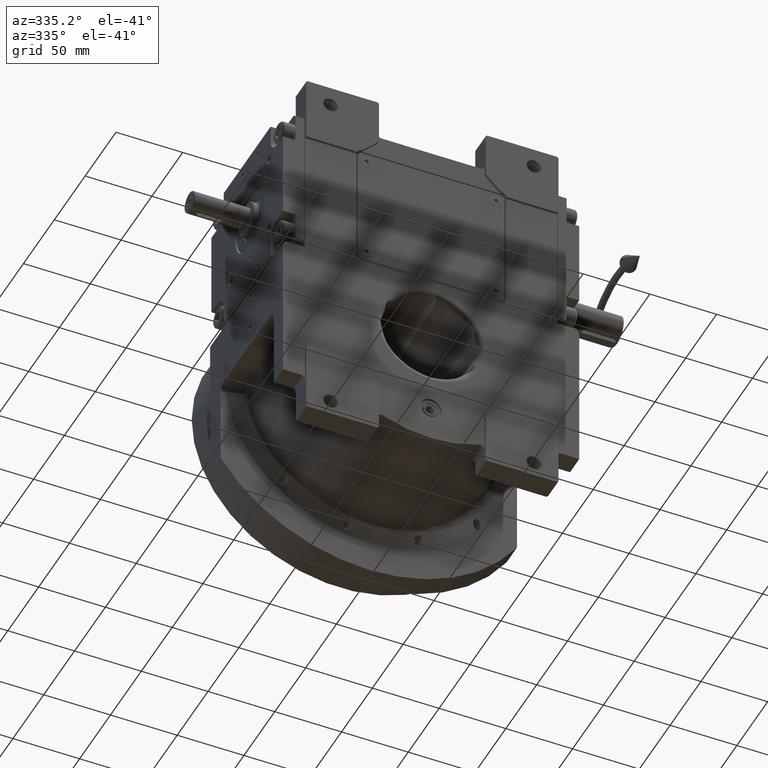
[diagram: clean part render]
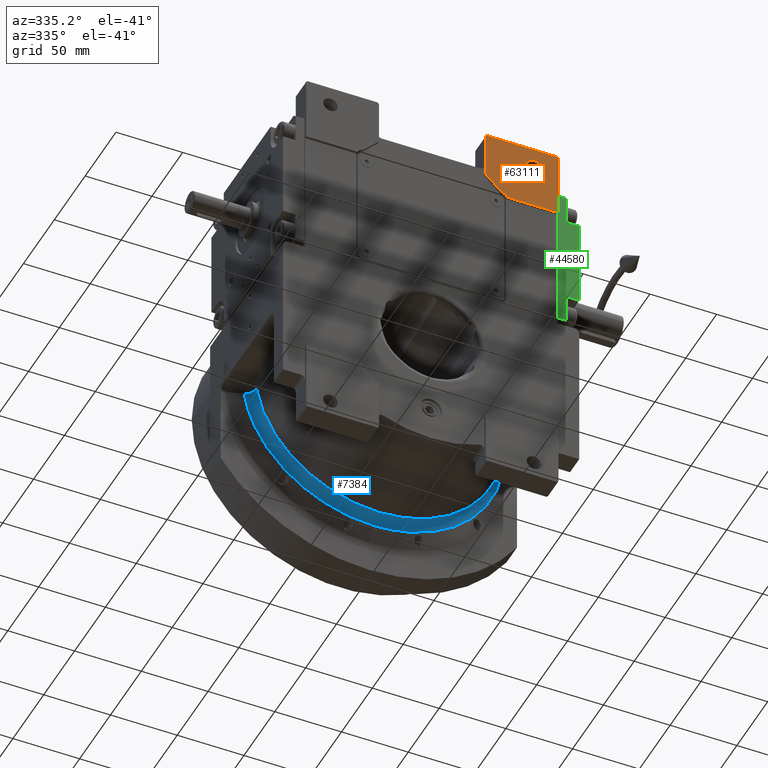
[diagram: same view with three faces highlighted in distinct colors, each labeled with its STEP entity id]
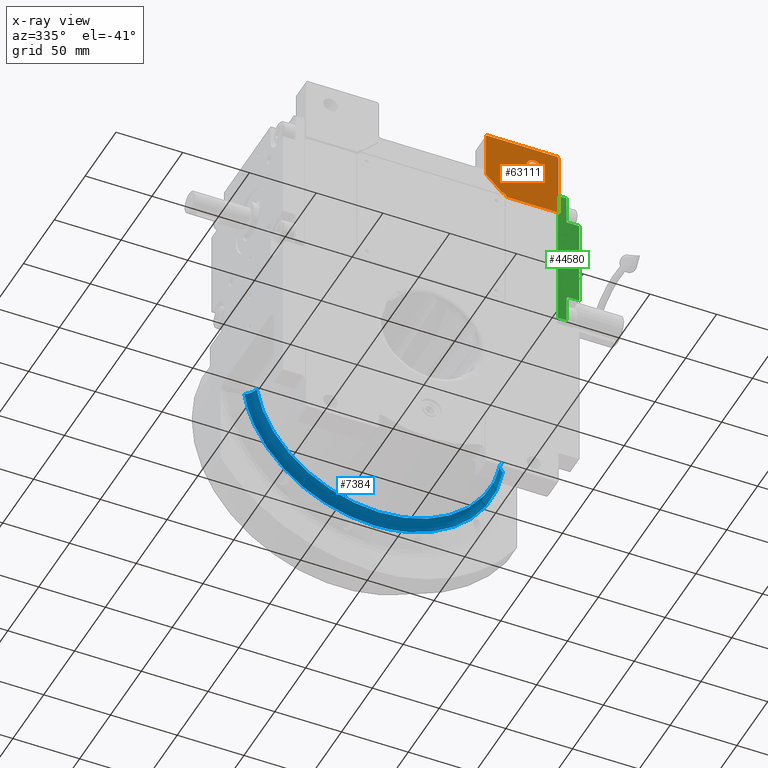
[diagram: x-ray of the same camera — body ghosted, the three highlighted faces saturated]
A machine part, auxiliary view with three faces highlighted in distinct colors.
The next image is the same camera in x-ray (body ghosted, the three faces saturated) — at least one of them is partly hidden behind the body in this view.
Their STEP definitions:

[orange] entity #63111 — the highlighted planar face has unit normal (0, -1, 0).
#401 = VECTOR ( 'NONE', #6009, 1000.000000000000114 ) ;
#783 = DIRECTION ( 'NONE',  ( -1.000000000000000000, 0.000000000000000000, 0.000000000000000000 ) ) ;
#1351 = CIRCLE ( 'NONE', #22281, 5.500000000000005329 ) ;
#2369 = DIRECTION ( 'NONE',  ( 0.000000000000000000, -1.000000000000000000, 0.000000000000000000 ) ) ;
#3494 = CARTESIAN_POINT ( 'NONE',  ( 81.69999999999998863, -55.50000000000000000, 178.0000000000000000 ) ) ;
#4413 = CARTESIAN_POINT ( 'NONE',  ( 39.99999999999929656, -55.50000000000000000, 192.0000000000000000 ) ) ;
#5113 = VERTEX_POINT ( 'NONE', #3494 ) ;
#5681 = LINE ( 'NONE', #37387, #401 ) ;
#6009 = DIRECTION ( 'NONE',  ( 0.7071067811865474617, 0.000000000000000000, -0.7071067811865474617 ) ) ;
#7813 = VECTOR ( 'NONE', #54853, 1000.000000000000114 ) ;
#8864 = VERTEX_POINT ( 'NONE', #52221 ) ;
#10362 = CARTESIAN_POINT ( 'NONE',  ( 94.50000000000000000, -55.50000000000000000, 143.0000000000000000 ) ) ;
#11279 = EDGE_CURVE ( 'NONE', #60317, #44044, #5681, .T. ) ;
#11772 = LINE ( 'NONE', #32811, #16561 ) ;
#11873 = CARTESIAN_POINT ( 'NONE',  ( 52.00000000000000000, -55.50000000000000000, 142.0000000000000000 ) ) ;
#12318 = VERTEX_POINT ( 'NONE', #40612 ) ;
#12353 = EDGE_CURVE ( 'NONE', #8864, #60317, #30590, .T. ) ;
#12842 = CARTESIAN_POINT ( 'NONE',  ( 94.50000000000000000, -55.50000000000000000, 192.0000000000000000 ) ) ;
#15127 = DIRECTION ( 'NONE',  ( -0.7071067811865474617, 0.000000000000000000, -0.7071067811865474617 ) ) ;
#16127 = EDGE_CURVE ( 'NONE', #67216, #31372, #62405, .T. ) ;
#16561 = VECTOR ( 'NONE', #783, 1000.000000000000000 ) ;
#16776 = CARTESIAN_POINT ( 'NONE',  ( 76.20000000000000284, -55.50000000000000000, 178.0000000000000000 ) ) ;
#17524 = FACE_OUTER_BOUND ( 'NONE', #65442, .T. ) ;
#19484 = VECTOR ( 'NONE', #15127, 1000.000000000000114 ) ;
#19981 = ORIENTED_EDGE ( 'NONE', *, *, #26996, .T. ) ;
#20458 = EDGE_CURVE ( 'NONE', #54954, #5113, #1351, .T. ) ;
#22001 = EDGE_CURVE ( 'NONE', #28877, #44044, #44422, .T. ) ;
#22281 = AXIS2_PLACEMENT_3D ( 'NONE', #16776, #63961, #49157 ) ;
#24486 = ORIENTED_EDGE ( 'NONE', *, *, #53652, .T. ) ;
#24490 = CARTESIAN_POINT ( 'NONE',  ( 94.50000000000000000, -55.50000000000000000, 192.0000000000000000 ) ) ;
#26996 = EDGE_CURVE ( 'NONE', #28877, #67216, #36436, .T. ) ;
#27866 = CARTESIAN_POINT ( 'NONE',  ( 0.000000000000000000, -55.50000000000000000, 0.000000000000000000 ) ) ;
#28249 = ORIENTED_EDGE ( 'NONE', *, *, #53171, .T. ) ;
#28877 = VERTEX_POINT ( 'NONE', #53097 ) ;
#30094 = AXIS2_PLACEMENT_3D ( 'NONE', #11873, #48388, #64241 ) ;
#30590 = LINE ( 'NONE', #4413, #62144 ) ;
#31372 = VERTEX_POINT ( 'NONE', #24490 ) ;
#32811 = CARTESIAN_POINT ( 'NONE',  ( 93.50000000000000000, -55.50000000000000000, 193.0000000000000000 ) ) ;
#33379 = DIRECTION ( 'NONE',  ( -1.000000000000000000, 0.000000000000000000, 0.000000000000000000 ) ) ;
#34486 = EDGE_CURVE ( 'NONE', #31372, #45616, #60049, .T. ) ;
#34644 = VECTOR ( 'NONE', #62741, 1000.000000000000000 ) ;
#36436 = LINE ( 'NONE', #53604, #47985 ) ;
#36823 = DIRECTION ( 'NONE',  ( 0.000000000000000000, 0.000000000000000000, -1.000000000000000000 ) ) ;
#37387 = CARTESIAN_POINT ( 'NONE',  ( 39.99999999999929656, -55.50000000000000000, 158.0000000000000000 ) ) ;
#38553 = PLANE ( 'NONE',  #61901 ) ;
#38679 = ORIENTED_EDGE ( 'NONE', *, *, #11279, .T. ) ;
#40612 = CARTESIAN_POINT ( 'NONE',  ( 40.99999999999930367, -55.50000000000000000, 193.0000000000000000 ) ) ;
#42472 = EDGE_CURVE ( 'NONE', #12318, #8864, #62321, .T. ) ;
#43107 = CARTESIAN_POINT ( 'NONE',  ( 51.99999999999930367, -55.50000000000000000, 146.0000000000000000 ) ) ;
#44044 = VERTEX_POINT ( 'NONE', #43107 ) ;
#44422 = CIRCLE ( 'NONE', #30094, 3.999999999999996891 ) ;
#45141 = ORIENTED_EDGE ( 'NONE', *, *, #16127, .T. ) ;
#45562 = EDGE_LOOP ( 'NONE', ( #24486, #51966 ) ) ;
#45616 = VERTEX_POINT ( 'NONE', #60911 ) ;
#46303 = CIRCLE ( 'NONE', #55108, 5.500000000000005329 ) ;
#47985 = VECTOR ( 'NONE', #63604, 1000.000000000000000 ) ;
#48388 = DIRECTION ( 'NONE',  ( 0.000000000000000000, -1.000000000000000000, 0.000000000000000000 ) ) ;
#49157 = DIRECTION ( 'NONE',  ( -1.000000000000000000, 0.000000000000000000, 0.000000000000000000 ) ) ;
#49209 = FACE_BOUND ( 'NONE', #45562, .T. ) ;
#49253 = CARTESIAN_POINT ( 'NONE',  ( 76.20000000000000284, -55.50000000000000000, 178.0000000000000000 ) ) ;
#51524 = CARTESIAN_POINT ( 'NONE',  ( 94.50000000000000000, -55.50000000000000000, 143.0000000000000000 ) ) ;
#51966 = ORIENTED_EDGE ( 'NONE', *, *, #20458, .T. ) ;
#52221 = CARTESIAN_POINT ( 'NONE',  ( 39.99999999999929656, -55.50000000000000000, 192.0000000000000000 ) ) ;
#53097 = CARTESIAN_POINT ( 'NONE',  ( 55.87298334620739837, -55.50000000000000000, 143.0000000000000000 ) ) ;
#53171 = EDGE_CURVE ( 'NONE', #45616, #12318, #11772, .T. ) ;
#53604 = CARTESIAN_POINT ( 'NONE',  ( 55.87298334620739837, -55.50000000000000000, 143.0000000000000000 ) ) ;
#53652 = EDGE_CURVE ( 'NONE', #5113, #54954, #46303, .T. ) ;
#53728 = DIRECTION ( 'NONE',  ( 1.000000000000000000, 0.000000000000000000, 0.000000000000000000 ) ) ;
#53757 = ORIENTED_EDGE ( 'NONE', *, *, #34486, .T. ) ;
#54853 = DIRECTION ( 'NONE',  ( -0.7071067811865474617, 0.000000000000000000, 0.7071067811865474617 ) ) ;
#54954 = VERTEX_POINT ( 'NONE', #67888 ) ;
#55108 = AXIS2_PLACEMENT_3D ( 'NONE', #49253, #64409, #53728 ) ;
#59718 = ORIENTED_EDGE ( 'NONE', *, *, #42472, .T. ) ;
#60049 = LINE ( 'NONE', #12842, #7813 ) ;
#60317 = VERTEX_POINT ( 'NONE', #64616 ) ;
#60911 = CARTESIAN_POINT ( 'NONE',  ( 93.50000000000000000, -55.50000000000000000, 193.0000000000000000 ) ) ;
#61690 = ORIENTED_EDGE ( 'NONE', *, *, #22001, .F. ) ;
#61901 = AXIS2_PLACEMENT_3D ( 'NONE', #27866, #2369, #33379 ) ;
#62144 = VECTOR ( 'NONE', #36823, 1000.000000000000000 ) ;
#62321 = LINE ( 'NONE', #62661, #19484 ) ;
#62405 = LINE ( 'NONE', #10362, #34644 ) ;
#62661 = CARTESIAN_POINT ( 'NONE',  ( 40.99999999999930367, -55.50000000000000000, 193.0000000000000000 ) ) ;
#62741 = DIRECTION ( 'NONE',  ( 0.000000000000000000, 0.000000000000000000, 1.000000000000000000 ) ) ;
#62860 = ORIENTED_EDGE ( 'NONE', *, *, #12353, .T. ) ;
#63111 = ADVANCED_FACE ( 'NONE', ( #49209, #17524 ), #38553, .T. ) ;
#63604 = DIRECTION ( 'NONE',  ( 1.000000000000000000, 0.000000000000000000, 0.000000000000000000 ) ) ;
#63961 = DIRECTION ( 'NONE',  ( 0.000000000000000000, 1.000000000000000000, 0.000000000000000000 ) ) ;
#64241 = DIRECTION ( 'NONE',  ( 0.9682458365518541443, 0.000000000000000000, 0.2500000000000004441 ) ) ;
#64409 = DIRECTION ( 'NONE',  ( 0.000000000000000000, 1.000000000000000000, 0.000000000000000000 ) ) ;
#64616 = CARTESIAN_POINT ( 'NONE',  ( 39.99999999999929656, -55.50000000000000000, 158.0000000000000000 ) ) ;
#65442 = EDGE_LOOP ( 'NONE', ( #62860, #38679, #61690, #19981, #45141, #53757, #28249, #59718 ) ) ;
#67216 = VERTEX_POINT ( 'NONE', #51524 ) ;
#67888 = CARTESIAN_POINT ( 'NONE',  ( 70.70000000000000284, -55.50000000000000000, 178.0000000000000000 ) ) ;

[blue] entity #7384 — the highlighted toroidal blend (fillet) surface has major radius 103 mm and minor (blend) radius 10 mm.
#222 = CARTESIAN_POINT ( 'NONE',  ( -92.20713085096697625, 34.20791438985033039, -15.17274392116164705 ) ) ;
#640 = ORIENTED_EDGE ( 'NONE', *, *, #7616, .T. ) ;
#799 = CARTESIAN_POINT ( 'NONE',  ( 94.42786900662497374, 37.98341469119410618, -15.05959796905412063 ) ) ;
#902 = CARTESIAN_POINT ( 'NONE',  ( -94.74854578481331657, 38.29608898670825567, -15.04224268228467665 ) ) ;
#1135 = CARTESIAN_POINT ( 'NONE',  ( 94.76765896782438858, 38.31472517732135685, -15.04120811764683019 ) ) ;
#1488 = CARTESIAN_POINT ( 'NONE',  ( 96.85710769208640158, 39.87901816609754491, -14.92320608909719937 ) ) ;
#1839 = CARTESIAN_POINT ( 'NONE',  ( 93.41247699215585953, 36.68741111161953938, -15.11282544456096844 ) ) ;
#2323 = CARTESIAN_POINT ( 'NONE',  ( -4.517455316885850268E-28, 31.21878281274445044, 0.000000000000000000 ) ) ;
#2760 = CARTESIAN_POINT ( 'NONE',  ( -89.14033501822824235, 39.87903545553515983, -65.00782844006340611 ) ) ;
#3123 = CARTESIAN_POINT ( 'NONE',  ( 1.421085471520200056E-14, 31.21878281274215183, 0.000000000000000000 ) ) ;
#3474 = CARTESIAN_POINT ( 'NONE',  ( -9.226961790163737573E-14, 39.87903547113305081, -97.99999599669763484 ) ) ;
#3915 = TOROIDAL_SURFACE ( 'NONE', #9390, 103.0000000000000000, 10.00000000000000000 ) ;
#5941 = CARTESIAN_POINT ( 'NONE',  ( 95.36250282372485287, 38.85180114626675874, -15.00841708843491240 ) ) ;
#6040 = CARTESIAN_POINT ( 'NONE',  ( -94.61480453581214078, 38.16329668810526954, -15.04946020151750830 ) ) ;
#6281 = CARTESIAN_POINT ( 'NONE',  ( 93.22649337317844243, 36.39734521838529702, -15.12240922812150856 ) ) ;
#6608 = CARTESIAN_POINT ( 'NONE',  ( 91.75021695200699412, 32.07163873125715980, -15.19531800824134571 ) ) ;
#6964 = CARTESIAN_POINT ( 'NONE',  ( 94.12793779986111531, 37.64706603313845079, -15.07546810111043101 ) ) ;
#7384 = ADVANCED_FACE ( 'NONE', ( #65009 ), #3915, .F. ) ;
#7616 = EDGE_CURVE ( 'NONE', #12945, #30640, #39186, .T. ) ;
#8356 =( BOUNDED_CURVE ( )  B_SPLINE_CURVE ( 3, ( #40306, #61305, #2760, #13080 ),
 .UNSPECIFIED., .F., .F. ) 
 B_SPLINE_CURVE_WITH_KNOTS ( ( 4, 4 ),
 ( 3.142973286274644895, 4.560897222382970462 ),
 .UNSPECIFIED. ) 
 CURVE ( )  GEOMETRIC_REPRESENTATION_ITEM ( )  RATIONAL_B_SPLINE_CURVE ( ( 1.000000000000000000, 0.8393587277169034522, 0.8393587277169034522, 1.000000000000000000 ) ) 
 REPRESENTATION_ITEM ( '' )  );
#8806 = EDGE_CURVE ( 'NONE', #12945, #30540, #32938, .T. ) ;
#9390 = AXIS2_PLACEMENT_3D ( 'NONE', #2323, #38849, #45946 ) ;
#9969 = CARTESIAN_POINT ( 'NONE',  ( 91.75016228501930016, 31.21878281274259948, -15.19564808333685058 ) ) ;
#10085 = ORIENTED_EDGE ( 'NONE', *, *, #8806, .F. ) ;
#10525 = CARTESIAN_POINT ( 'NONE',  ( -92.70529646377556787, 35.44640108958090963, -15.14863136810667932 ) ) ;
#11319 = ORIENTED_EDGE ( 'NONE', *, *, #40029, .T. ) ;
#11439 = CARTESIAN_POINT ( 'NONE',  ( 93.59381837072852761, 36.95298514234842457, -15.10342763479789241 ) ) ;
#11541 = CARTESIAN_POINT ( 'NONE',  ( -94.73679542291178279, 38.28458899849099595, -15.04287820704028533 ) ) ;
#12133 = CARTESIAN_POINT ( 'NONE',  ( 96.43645496120839766, 39.64115437283938803, -14.94760659334819586 ) ) ;
#12945 = VERTEX_POINT ( 'NONE', #37316 ) ;
#13080 = CARTESIAN_POINT ( 'NONE',  ( -96.85709795745168549, 39.87903522507845366, -14.92320458950059958 ) ) ;
#13266 = ORIENTED_EDGE ( 'NONE', *, *, #59668, .F. ) ;
#15721 = CARTESIAN_POINT ( 'NONE',  ( -94.47547497222841173, 38.02032339801947103, -15.05694268736777452 ) ) ;
#16390 = CARTESIAN_POINT ( 'NONE',  ( -93.58647493149591412, 36.95529582259712953, -15.10385405343757093 ) ) ;
#16728 = CARTESIAN_POINT ( 'NONE',  ( -93.34500353723157673, 36.59997510740267757, -15.11636425752244151 ) ) ;
#16974 = CARTESIAN_POINT ( 'NONE',  ( 93.14600945989805325, 36.26450655552133640, -15.12653236979147664 ) ) ;
#17333 = CIRCLE ( 'NONE', #43694, 93.00000000000001421 ) ;
#17652 = CARTESIAN_POINT ( 'NONE',  ( 95.01130748181392960, 38.54508199916480748, -15.02790831500245439 ) ) ;
#17996 = CARTESIAN_POINT ( 'NONE',  ( 96.05222172876865727, 39.38472949819187363, -14.96952494069545736 ) ) ;
#19830 = EDGE_LOOP ( 'NONE', ( #62497, #11319, #13266, #10085, #640 ) ) ;
#21567 = CARTESIAN_POINT ( 'NONE',  ( -91.86243524609182032, 32.93675489758972930, -15.18941360579236388 ) ) ;
#22838 = CARTESIAN_POINT ( 'NONE',  ( 93.32449278843465379, 36.55397011505458238, -15.11737131457517336 ) ) ;
#25697 = CARTESIAN_POINT ( 'NONE',  ( -92.85706712798210560, 35.74724135097842037, -15.14111248674943866 ) ) ;
#26053 = CARTESIAN_POINT ( 'NONE',  ( -94.36020064412448960, 37.89585421160228407, -15.06309071816676415 ) ) ;
#26560 = CARTESIAN_POINT ( 'NONE',  ( -96.85709795745168549, 39.87903522507845366, -14.92320458950059958 ) ) ;
#26719 = VERTEX_POINT ( 'NONE', #26560 ) ;
#27072 = CARTESIAN_POINT ( 'NONE',  ( -94.68568005237736429, 38.23419351709857494, -15.04563966551404164 ) ) ;
#27307 = CARTESIAN_POINT ( 'NONE',  ( 93.18548347312724900, 36.33003888983931517, -15.12451147329382195 ) ) ;
#30540 = VERTEX_POINT ( 'NONE', #3474 ) ;
#30640 = VERTEX_POINT ( 'NONE', #9969 ) ;
#31553 = CARTESIAN_POINT ( 'NONE',  ( -94.13517602163261699, 37.64462023437468474, -15.07504727411635415 ) ) ;
#31817 = VERTEX_POINT ( 'NONE', #36486 ) ;
#32824 = CARTESIAN_POINT ( 'NONE',  ( 95.12627367511505838, 38.64762270606092898, -15.02154952942560762 ) ) ;
#32938 =( BOUNDED_CURVE ( )  B_SPLINE_CURVE ( 3, ( #41576, #46711, #62906, #62559 ),
 .UNSPECIFIED., .F., .F. ) 
 B_SPLINE_CURVE_WITH_KNOTS ( ( 4, 4 ),
 ( 1.725049350037650031, 3.142973286274644895 ),
 .UNSPECIFIED. ) 
 CURVE ( )  GEOMETRIC_REPRESENTATION_ITEM ( )  RATIONAL_B_SPLINE_CURVE ( ( 1.000000000000000000, 0.8393587276889801219, 0.8393587276889801219, 1.000000000000000000 ) ) 
 REPRESENTATION_ITEM ( '' )  );
#33166 = CARTESIAN_POINT ( 'NONE',  ( 93.72187973110938231, 37.12829298566084901, -15.09675511601833797 ) ) ;
#34463 = DIRECTION ( 'NONE',  ( 5.743225055535190204E-15, 1.000000000000000000, 2.439003765979129920E-14 ) ) ;
#36486 = CARTESIAN_POINT ( 'NONE',  ( -91.75030103113060420, 31.21878279875124917, -15.19503959111690072 ) ) ;
#37095 = CARTESIAN_POINT ( 'NONE',  ( -92.35130654954592444, 34.62714478310525834, -15.16584884260769250 ) ) ;
#37316 = CARTESIAN_POINT ( 'NONE',  ( 96.85710769208640158, 39.87901816609754491, -14.92320608909719937 ) ) ;
#37422 = CARTESIAN_POINT ( 'NONE',  ( -93.99252845294486747, 37.47407241526042299, -15.08256646251302513 ) ) ;
#37760 = CARTESIAN_POINT ( 'NONE',  ( -96.85709795745168549, 39.87903522507845366, -14.92320458950059958 ) ) ;
#38004 = CARTESIAN_POINT ( 'NONE',  ( 92.66952726990713529, 35.46124320583766121, -15.15088229258502572 ) ) ;
#38849 = DIRECTION ( 'NONE',  ( -3.444184274207035004E-17, -1.000000000000000000, 1.866217551492050167E-18 ) ) ;
#39186 = B_SPLINE_CURVE_WITH_KNOTS ( 'NONE', 3,
 ( #1488, #12133, #17996, #60032, #5941, #32824, #17652, #44184, #53132, #65179, #53476, #1135, #799, #6964, #33166, #11439, #1839, #22838, #6281, #27307, #64160, #16974, #38004, #43849, #59000, #6608, #48655 ),
 .UNSPECIFIED., .F., .F.,
 ( 4, 2, 2, 1, 1, 1, 2, 2, 2, 2, 1, 1, 2, 2, 2, 4 ),
 ( 0.000000000000000000, 0.1249999999999725220, 0.1874999999999587830, 0.2187499999999503730, 0.2343749999999468758, 0.2421874999999451272, 0.2460937499999442390, 0.2499999999999433509, 0.3749999999999559797, 0.4374999999999614753, 0.4687499999999645839, 0.4843749999999669709, 0.4921874999999692468, 0.4999999999999715783, 0.7499999999999857891, 1.000000000000000000 ),
 .UNSPECIFIED. ) ;
#40029 = EDGE_CURVE ( 'NONE', #31817, #26719, #46609, .T. ) ;
#40306 = CARTESIAN_POINT ( 'NONE',  ( -9.226961790163737573E-14, 39.87903547113305081, -97.99999599669763484 ) ) ;
#41576 = CARTESIAN_POINT ( 'NONE',  ( 96.85710769208640158, 39.87901816609754491, -14.92320608909719937 ) ) ;
#42247 = CARTESIAN_POINT ( 'NONE',  ( -92.93565867191826158, 35.89666686376956051, -15.13719495145634042 ) ) ;
#42585 = CARTESIAN_POINT ( 'NONE',  ( -93.07436984289471127, 36.14255172669999183, -15.13018490521599624 ) ) ;
#42918 = CARTESIAN_POINT ( 'NONE',  ( -91.75030103113060420, 31.21878279875124917, -15.19503959111690072 ) ) ;
#43694 = AXIS2_PLACEMENT_3D ( 'NONE', #3123, #34463, #45809 ) ;
#43849 = CARTESIAN_POINT ( 'NONE',  ( 92.32204240605643975, 34.63167074273234647, -15.16718958915075888 ) ) ;
#44184 = CARTESIAN_POINT ( 'NONE',  ( 94.88256542447922470, 38.42498196245097120, -15.03496025070257502 ) ) ;
#45809 = DIRECTION ( 'NONE',  ( 0.9865608847851539132, -1.678764654171103455E-15, -0.1633940654122239822 ) ) ;
#45946 = DIRECTION ( 'NONE',  ( 0.9985352390207220541, -3.449236581359708725E-17, -0.05410523480985400535 ) ) ;
#46609 = B_SPLINE_CURVE_WITH_KNOTS ( 'NONE', 3,
 ( #42918, #47738, #21567, #222, #37095, #57752, #10525, #25697, #42247, #53238, #42585, #63580, #68065, #16728, #16390, #37422, #31553, #26053, #15721, #6040, #27072, #62563, #11541, #902, #52568, #63912, #37760 ),
 .UNSPECIFIED., .F., .F.,
 ( 4, 2, 2, 2, 1, 1, 2, 2, 2, 2, 1, 1, 1, 2, 2, 4 ),
 ( 0.000000000000000000, 0.2500000000000277001, 0.3750000000000425215, 0.4375000000000500155, 0.4687500000000546785, 0.4843750000000570100, 0.4921875000000591194, 0.5000000000000612843, 0.6250000000000721645, 0.6875000000000774936, 0.7187500000000807132, 0.7343750000000817124, 0.7421875000000822675, 0.7460937500000824896, 0.7500000000000826006, 1.000000000000000000 ),
 .UNSPECIFIED. ) ;
#46711 = CARTESIAN_POINT ( 'NONE',  ( 89.14033502477229831, 39.87903548673092757, -65.00782844516591297 ) ) ;
#47594 = EDGE_CURVE ( 'NONE', #30640, #31817, #17333, .T. ) ;
#47738 = CARTESIAN_POINT ( 'NONE',  ( -91.75021695601039085, 32.07161283199356916, -15.19531798406919521 ) ) ;
#48655 = CARTESIAN_POINT ( 'NONE',  ( 91.75016228501930016, 31.21878281274259948, -15.19564808333685058 ) ) ;
#52568 = CARTESIAN_POINT ( 'NONE',  ( -95.32163976080461509, 38.85488166140381594, -15.01122830461017088 ) ) ;
#53132 = CARTESIAN_POINT ( 'NONE',  ( 94.81952392417289843, 38.36485287603925798, -15.03839378779375835 ) ) ;
#53238 = CARTESIAN_POINT ( 'NONE',  ( -93.03205353950460221, 36.06908570917927648, -15.13233289082379862 ) ) ;
#53476 = CARTESIAN_POINT ( 'NONE',  ( 94.77502878599159430, 38.32187962487090971, -15.04080872374902533 ) ) ;
#57752 = CARTESIAN_POINT ( 'NONE',  ( -92.61133489695058074, 35.24318892788890878, -15.15322299822900298 ) ) ;
#59000 = CARTESIAN_POINT ( 'NONE',  ( 91.86244182290010940, 32.93679328701041698, -15.18941474239577083 ) ) ;
#59668 = EDGE_CURVE ( 'NONE', #30540, #26719, #8356, .T. ) ;
#60032 = CARTESIAN_POINT ( 'NONE',  ( 95.52838985242588876, 38.98672249498758191, -14.99911021756371454 ) ) ;
#61305 = CARTESIAN_POINT ( 'NONE',  ( -50.67561381681266397, 39.87903546226575457, -97.99999599352845792 ) ) ;
#62497 = ORIENTED_EDGE ( 'NONE', *, *, #47594, .T. ) ;
#62559 = CARTESIAN_POINT ( 'NONE',  ( -9.226961790163737573E-14, 39.87903547113305081, -97.99999599669763484 ) ) ;
#62563 = CARTESIAN_POINT ( 'NONE',  ( -94.71631468964486089, 38.26444829618387899, -15.04398509723695021 ) ) ;
#62906 = CARTESIAN_POINT ( 'NONE',  ( 50.67561382229939682, 39.87903548000032572, -97.99999599986676913 ) ) ;
#63580 = CARTESIAN_POINT ( 'NONE',  ( -93.10280341673316684, 36.19143197862474182, -15.12873843835923893 ) ) ;
#63912 = CARTESIAN_POINT ( 'NONE',  ( -96.01575116225822626, 39.40323916108975055, -14.97201222673670529 ) ) ;
#64160 = CARTESIAN_POINT ( 'NONE',  ( 93.15836278664464487, 36.28512999812676298, -15.12590033579409088 ) ) ;
#65009 = FACE_OUTER_BOUND ( 'NONE', #19830, .T. ) ;
#65179 = CARTESIAN_POINT ( 'NONE',  ( 94.79278921998292162, 38.33907037695012576, -15.03984540845728368 ) ) ;
#68065 = CARTESIAN_POINT ( 'NONE',  ( -93.11823127098385555, 36.21767747878050159, -15.12795177440984418 ) ) ;

[green] entity #44580 — the highlighted planar face has unit normal (-0, -1, 0).
#630 = EDGE_LOOP ( 'NONE', ( #20788, #17984, #10845, #25452, #16743, #4133, #19367, #11521 ) ) ;
#1777 = LINE ( 'NONE', #33796, #50797 ) ;
#2443 = DIRECTION ( 'NONE',  ( 8.437694987151227573E-15, -2.109423746787996220E-15, 1.000000000000000000 ) ) ;
#2456 = VECTOR ( 'NONE', #33435, 1000.000000000000000 ) ;
#3698 = CARTESIAN_POINT ( 'NONE',  ( -53.49999999999947420, -15.99999999999894484, 33.49999999999998579 ) ) ;
#4133 = ORIENTED_EDGE ( 'NONE', *, *, #36101, .T. ) ;
#5347 = CARTESIAN_POINT ( 'NONE',  ( -53.50000000000000000, -15.99999999999841904, -33.50000000000001421 ) ) ;
#5995 = EDGE_CURVE ( 'NONE', #34704, #37496, #9400, .T. ) ;
#7033 = DIRECTION ( 'NONE',  ( 8.437694987151227573E-15, -2.109423746787996220E-15, 1.000000000000000000 ) ) ;
#7363 = LINE ( 'NONE', #23213, #7944 ) ;
#7944 = VECTOR ( 'NONE', #42867, 1000.000000000000000 ) ;
#9400 = LINE ( 'NONE', #30438, #10118 ) ;
#10118 = VECTOR ( 'NONE', #41814, 1000.000000000000000 ) ;
#10845 = ORIENTED_EDGE ( 'NONE', *, *, #34868, .T. ) ;
#10956 = VECTOR ( 'NONE', #23414, 1000.000000000000000 ) ;
#11339 = EDGE_CURVE ( 'NONE', #11551, #50340, #43230, .T. ) ;
#11340 = CARTESIAN_POINT ( 'NONE',  ( -53.50000000000026290, -6.499999999998423483, -33.50000000000001421 ) ) ;
#11521 = ORIENTED_EDGE ( 'NONE', *, *, #11339, .F. ) ;
#11551 = VERTEX_POINT ( 'NONE', #31767 ) ;
#14404 = CARTESIAN_POINT ( 'NONE',  ( -53.49999999999973710, -6.499999999998936850, 55.00000000000000711 ) ) ;
#16743 = ORIENTED_EDGE ( 'NONE', *, *, #37219, .T. ) ;
#17984 = ORIENTED_EDGE ( 'NONE', *, *, #5995, .T. ) ;
#19341 = AXIS2_PLACEMENT_3D ( 'NONE', #45653, #31160, #40843 ) ;
#19367 = ORIENTED_EDGE ( 'NONE', *, *, #32581, .T. ) ;
#20788 = ORIENTED_EDGE ( 'NONE', *, *, #55109, .F. ) ;
#21719 = VERTEX_POINT ( 'NONE', #11340 ) ;
#21883 = DIRECTION ( 'NONE',  ( 8.437694987151227573E-15, -2.109423746787996220E-15, 1.000000000000000000 ) ) ;
#22903 = DIRECTION ( 'NONE',  ( 2.320366121466570228E-14, -1.000000000000000000, 2.109423746787997797E-15 ) ) ;
#23213 = CARTESIAN_POINT ( 'NONE',  ( -53.49999999999947420, -15.99999999999894484, 33.49999999999998579 ) ) ;
#23414 = DIRECTION ( 'NONE',  ( -2.320366121466570228E-14, 1.000000000000000000, -2.109423746787997797E-15 ) ) ;
#23458 = VECTOR ( 'NONE', #7033, 1000.000000000000000 ) ;
#23565 = LINE ( 'NONE', #53543, #23458 ) ;
#25452 = ORIENTED_EDGE ( 'NONE', *, *, #31658, .F. ) ;
#25826 = CARTESIAN_POINT ( 'NONE',  ( -53.49999999999973710, -6.499999999998423483, 33.49999999999998579 ) ) ;
#26000 = FACE_OUTER_BOUND ( 'NONE', #630, .T. ) ;
#28742 = CARTESIAN_POINT ( 'NONE',  ( -53.49999999999973710, 1.054711873393898713E-12, 55.00000000000000711 ) ) ;
#30438 = CARTESIAN_POINT ( 'NONE',  ( -53.50000000000026290, 1.582067810090848070E-12, -55.00000000000026290 ) ) ;
#31160 = DIRECTION ( 'NONE',  ( -1.000000000000000000, 2.320366121466565494E-14, 8.437694987151276482E-15 ) ) ;
#31658 = EDGE_CURVE ( 'NONE', #57617, #21719, #44774, .T. ) ;
#31767 = CARTESIAN_POINT ( 'NONE',  ( -53.49999999999973710, 1.054711873393898713E-12, 55.00000000000000711 ) ) ;
#32581 = EDGE_CURVE ( 'NONE', #48883, #50340, #42576, .T. ) ;
#33435 = DIRECTION ( 'NONE',  ( 8.437694987151227573E-15, -2.109423746787996220E-15, 1.000000000000000000 ) ) ;
#33796 = CARTESIAN_POINT ( 'NONE',  ( -53.50000000000026290, -6.499999999998423483, -55.00000000000026290 ) ) ;
#34704 = VERTEX_POINT ( 'NONE', #46895 ) ;
#34868 = EDGE_CURVE ( 'NONE', #37496, #21719, #1777, .T. ) ;
#36101 = EDGE_CURVE ( 'NONE', #61342, #48883, #7363, .T. ) ;
#37219 = EDGE_CURVE ( 'NONE', #57617, #61342, #23565, .T. ) ;
#37496 = VERTEX_POINT ( 'NONE', #39421 ) ;
#39421 = CARTESIAN_POINT ( 'NONE',  ( -53.50000000000026290, -6.499999999998423483, -55.00000000000026290 ) ) ;
#40503 = PLANE ( 'NONE',  #19341 ) ;
#40843 = DIRECTION ( 'NONE',  ( 8.437694987151227573E-15, -2.109423746787996220E-15, 1.000000000000000000 ) ) ;
#41814 = DIRECTION ( 'NONE',  ( 2.320366121466570228E-14, -1.000000000000000000, 2.109423746787997797E-15 ) ) ;
#42207 = VECTOR ( 'NONE', #22903, 1000.000000000000000 ) ;
#42576 = LINE ( 'NONE', #58412, #42842 ) ;
#42737 = CARTESIAN_POINT ( 'NONE',  ( -53.50000000000026290, 1.582067810090848070E-12, -55.00000000000026290 ) ) ;
#42842 = VECTOR ( 'NONE', #21883, 1000.000000000000000 ) ;
#42867 = DIRECTION ( 'NONE',  ( -2.320366121466570228E-14, 1.000000000000000000, -2.109423746787997797E-15 ) ) ;
#43230 = LINE ( 'NONE', #28742, #42207 ) ;
#44580 = ADVANCED_FACE ( 'NONE', ( #26000 ), #40503, .T. ) ;
#44774 = LINE ( 'NONE', #45101, #10956 ) ;
#45101 = CARTESIAN_POINT ( 'NONE',  ( -53.50000000000000000, -15.99999999999841904, -33.50000000000001421 ) ) ;
#45653 = CARTESIAN_POINT ( 'NONE',  ( -53.50000000000052580, 1.582067810090848070E-12, -58.00000000000027001 ) ) ;
#46895 = CARTESIAN_POINT ( 'NONE',  ( -53.50000000000026290, 1.582067810090848070E-12, -55.00000000000026290 ) ) ;
#48582 = LINE ( 'NONE', #42737, #2456 ) ;
#48883 = VERTEX_POINT ( 'NONE', #25826 ) ;
#50340 = VERTEX_POINT ( 'NONE', #14404 ) ;
#50797 = VECTOR ( 'NONE', #2443, 1000.000000000000000 ) ;
#53543 = CARTESIAN_POINT ( 'NONE',  ( -53.50000000000000000, -15.99999999999841904, -33.50000000000001421 ) ) ;
#55109 = EDGE_CURVE ( 'NONE', #34704, #11551, #48582, .T. ) ;
#57617 = VERTEX_POINT ( 'NONE', #5347 ) ;
#58412 = CARTESIAN_POINT ( 'NONE',  ( -53.49999999999973710, -6.499999999998423483, 33.49999999999998579 ) ) ;
#61342 = VERTEX_POINT ( 'NONE', #3698 ) ;